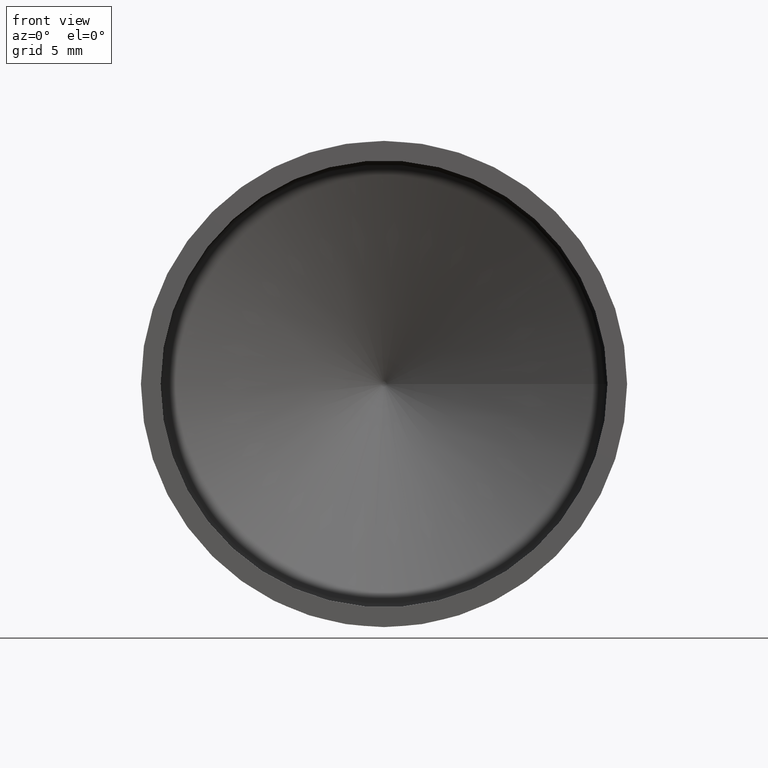
[diagram: clean part render]
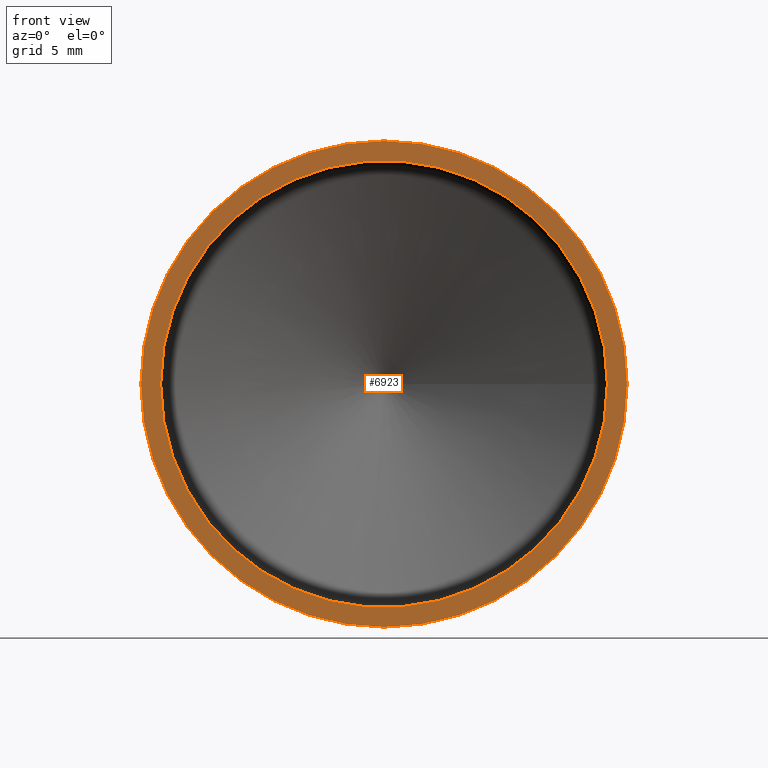
[diagram: same view with one face highlighted and labeled with its STEP entity id]
A machine part, front view. The second image highlights one B-rep face of the part: STEP entity #6923.
In plain terms, the highlighted planar face has unit normal (0, -1, -0).
Its self-contained STEP definition (entity closure, byte-faithful):
#141 = CARTESIAN_POINT ( 'NONE',  ( 3.878048197299957200E-016, 0.0000000000000000000, 0.0000000000000000000 ) ) ;
#379 = EDGE_CURVE ( 'NONE', #3161, #3161, #915, .T. ) ;
#858 = DIRECTION ( 'NONE',  ( 2.041077998578925000E-017, -1.000000000000000000, -0.0000000000000000000 ) ) ;
#915 = CIRCLE ( 'NONE', #3253, 18.50000000000000000 ) ;
#1738 = FACE_BOUND ( 'NONE', #7297, .T. ) ;
#2781 = CARTESIAN_POINT ( 'NONE',  ( 16.99999999999999600, 3.469832597584171900E-016, 0.0000000000000000000 ) ) ;
#3124 = EDGE_LOOP ( 'NONE', ( #4018 ) ) ;
#3161 = VERTEX_POINT ( 'NONE', #8303 ) ;
#3253 = AXIS2_PLACEMENT_3D ( 'NONE', #141, #858, #8558 ) ;
#4018 = ORIENTED_EDGE ( 'NONE', *, *, #379, .T. ) ;
#4066 = DIRECTION ( 'NONE',  ( 1.000000000000000000, 2.041077998578925000E-017, 0.0000000000000000000 ) ) ;
#4076 = PLANE ( 'NONE',  #7846 ) ;
#4285 = ORIENTED_EDGE ( 'NONE', *, *, #9157, .F. ) ;
#6157 = DIRECTION ( 'NONE',  ( 2.041077998578925000E-017, -1.000000000000000000, -0.0000000000000000000 ) ) ;
#6796 = CARTESIAN_POINT ( 'NONE',  ( 16.99999999999999600, -1.530808498934194900E-017, 0.0000000000000000000 ) ) ;
#6923 = ADVANCED_FACE ( 'NONE', ( #8610, #1738 ), #4076, .T. ) ;
#6947 = CARTESIAN_POINT ( 'NONE',  ( 3.878048197299957200E-016, 0.0000000000000000000, 0.0000000000000000000 ) ) ;
#7138 = VERTEX_POINT ( 'NONE', #2781 ) ;
#7297 = EDGE_LOOP ( 'NONE', ( #4285 ) ) ;
#7503 = DIRECTION ( 'NONE',  ( 1.000000000000000000, 2.041077998578925000E-017, 0.0000000000000000000 ) ) ;
#7846 = AXIS2_PLACEMENT_3D ( 'NONE', #6796, #8909, #7503 ) ;
#7937 = CIRCLE ( 'NONE', #8409, 16.99999999999999600 ) ;
#8303 = CARTESIAN_POINT ( 'NONE',  ( 18.50000000000000000, 3.775994297371011200E-016, 0.0000000000000000000 ) ) ;
#8409 = AXIS2_PLACEMENT_3D ( 'NONE', #6947, #6157, #4066 ) ;
#8558 = DIRECTION ( 'NONE',  ( 1.000000000000000000, 2.041077998578925000E-017, 0.0000000000000000000 ) ) ;
#8610 = FACE_OUTER_BOUND ( 'NONE', #3124, .T. ) ;
#8909 = DIRECTION ( 'NONE',  ( 2.041077998578925000E-017, -1.000000000000000000, -0.0000000000000000000 ) ) ;
#9157 = EDGE_CURVE ( 'NONE', #7138, #7138, #7937, .T. ) ;